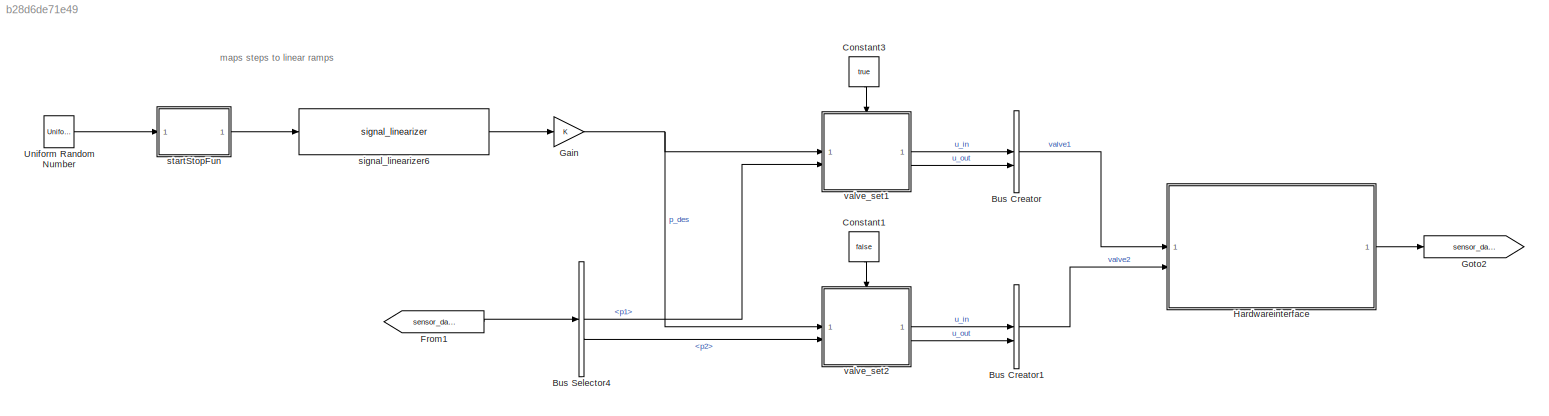
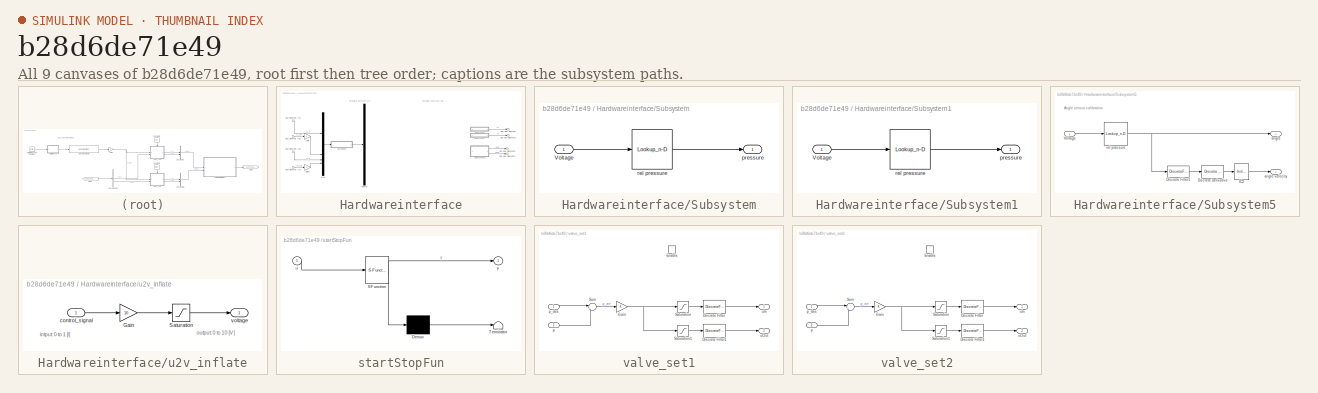
[diagram: thumbnail index - all 9 canvases of the model, root first then tree order]
MODEL slx_b28d6de71e49
KIND model
CONFIG AbsTol = auto
CONFIG EnableMultiTasking = off
CONFIG FixedStep = dev.dt
CONFIG MaxStep = auto
CONFIG MinStep = auto
CONFIG RelTol = 1e-3
CONFIG SampleTimeConstraint = Unconstrained
CONFIG SolverName = FixedStepDiscrete
CONFIG StartTime = 0.0
CONFIG StopTime = 300
BLOCK [BusCreator] Bus Creator
  DisplayOption = bar
  InheritFromInputs = on
  Inputs = 2
BLOCK [BusCreator] Bus Creator1
  DisplayOption = bar
  InheritFromInputs = on
  Inputs = 2
BLOCK [BusSelector] Bus Selector4
  OutputSignals = p1,p2
BLOCK [Constant] Constant1
  NameLocation = left
  Value = false
BLOCK [Constant] Constant3
  NameLocation = left
  Value = true
BLOCK [From] From1
  GotoTag = sensor_data
BLOCK [Gain] Gain
BLOCK [Goto] Goto2
  GotoTag = sensor_data
  NameLocation = top
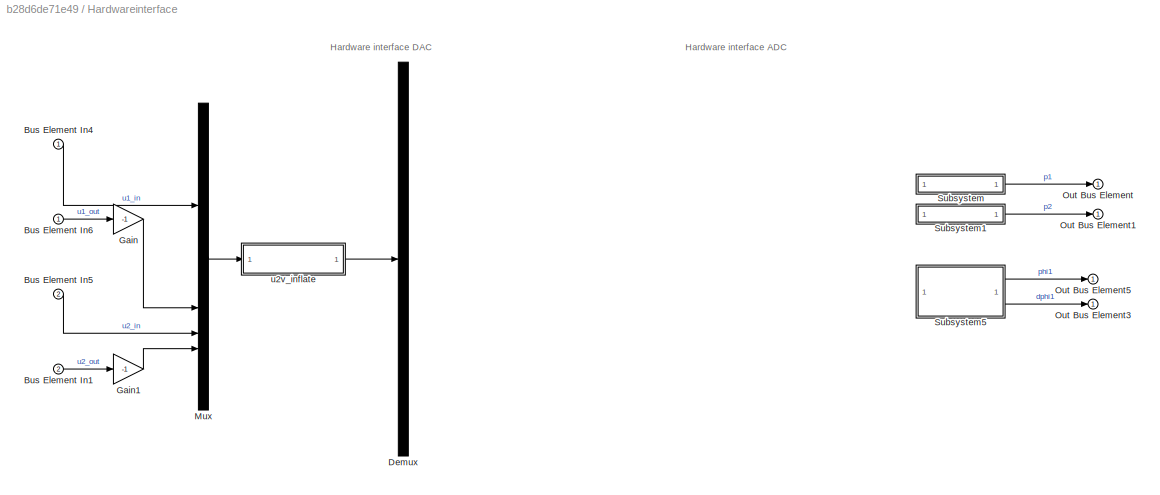
BLOCK [SubSystem] Hardwareinterface
BLOCK [Inport] Hardwareinterface/Bus Element In1
  Port = 2
BLOCK [Inport] Hardwareinterface/Bus Element In4
BLOCK [Inport] Hardwareinterface/Bus Element In5
  Port = 2
BLOCK [Inport] Hardwareinterface/Bus Element In6
BLOCK [Demux] Hardwareinterface/Demux
BLOCK [Gain] Hardwareinterface/Gain
  Gain = -1
BLOCK [Gain] Hardwareinterface/Gain1
  Gain = -1
BLOCK [Mux] Hardwareinterface/Mux
  DisplayOption = bar
BLOCK [Outport] Hardwareinterface/Out Bus Element
BLOCK [Outport] Hardwareinterface/Out Bus Element1
BLOCK [Outport] Hardwareinterface/Out Bus Element3
BLOCK [Outport] Hardwareinterface/Out Bus Element5
BLOCK [SubSystem] Hardwareinterface/Subsystem
BLOCK [Inport] Hardwareinterface/Subsystem/Voltage
BLOCK [Outport] Hardwareinterface/Subsystem/pressure
  VectorParamsAs1DForOutWhenUnconnected = off
BLOCK [Lookup_n-D] Hardwareinterface/Subsystem/rel pressure
  BreakpointsForDimension1 = [0 10]
  InputPortMap = u0
  InternalRulePriority = Speed
  NumberOfTableDimensions = 1
  RndMeth = Simplest
  Table = [0 10]
BLOCK [SubSystem] Hardwareinterface/Subsystem1
BLOCK [Inport] Hardwareinterface/Subsystem1/Voltage
BLOCK [Outport] Hardwareinterface/Subsystem1/pressure
  VectorParamsAs1DForOutWhenUnconnected = off
BLOCK [Lookup_n-D] Hardwareinterface/Subsystem1/rel pressure
  BreakpointsForDimension1 = [0 10]
  InputPortMap = u0
  InternalRulePriority = Speed
  NumberOfTableDimensions = 1
  RndMeth = Simplest
  Table = [0 10]
BLOCK [SubSystem] Hardwareinterface/Subsystem5
BLOCK [Reference] Hardwareinterface/Subsystem5/Discrete Derivative  REF=simulink/Discrete/Discrete Derivative
  SourceBlock = simulink/Discrete/Discrete Derivative
  SourceType = Discrete Derivative
BLOCK [DiscreteFilter] Hardwareinterface/Subsystem5/Discrete Filter1
  CloseFcn = dspblkCoreblockFVToolHelper(gcbh,'close');
  CopyFcn = dspblkCoreblockFVToolHelper(gcbh,'copy');
  DeleteFcn = dspblkCoreblockFVToolHelper(gcbh,'close');
  Denominator = disfilt.angle.Denominator{1}
  InputPortMap = u0
  LoadFcn = dspblkCoreblockFVToolHelper(gcbh,'load');
  ModelCloseFcn = dspblkCoreblockFVToolHelper(gcbh,'close');
  Numerator = disfilt.angle.Numerator{1}
  PostSaveFcn = dspblkCoreblockFVToolHelper(gcbh,'postsave');
  PreSaveFcn = dspblkCoreblockFVToolHelper(gcbh,'presave');
BLOCK [InitialCondition] Hardwareinterface/Subsystem5/IC2
BLOCK [Inport] Hardwareinterface/Subsystem5/Voltage
BLOCK [Outport] Hardwareinterface/Subsystem5/angle
  VectorParamsAs1DForOutWhenUnconnected = off
BLOCK [Outport] Hardwareinterface/Subsystem5/angle velocity
  Port = 2
  VectorParamsAs1DForOutWhenUnconnected = off
BLOCK [Lookup_n-D] Hardwareinterface/Subsystem5/rel pressure
  BreakpointsForDimension1 = [2.167 3.14]
  InputPortMap = u0
  InternalRulePriority = Speed
  NumberOfTableDimensions = 1
  RndMeth = Simplest
  Table = [0.7854 -0.7854]
BLOCK [SubSystem] Hardwareinterface/u2v_inflate
BLOCK [Gain] Hardwareinterface/u2v_inflate/Gain
  Gain = 10
BLOCK [Saturate] Hardwareinterface/u2v_inflate/Saturation
  LowerLimit = 0
  UpperLimit = 10
BLOCK [Inport] Hardwareinterface/u2v_inflate/control_signal
BLOCK [Outport] Hardwareinterface/u2v_inflate/voltage
  VectorParamsAs1DForOutWhenUnconnected = off
BLOCK [UniformRandomNumber] Uniform Random Number
  Maximum = 6.5
  Minimum = -0.5
  SampleTime = dt
BLOCK [Reference] signal_linearizer6  REF=subsignallib/signal_linearizer
  SourceBlock = subsignallib/signal_linearizer
  SourceProductName = Signals
BLOCK [SubSystem] startStopFun
  ErrorFcn = Stateflow.Translate.translate
  LibrarySourceBlock = simulink/User-Defined\nFunctions/MATLAB Function
  PermitHierarchicalResolution = ExplicitOnly
  SFBlockType = MATLAB Function
  TreatAsAtomicUnit = on
BLOCK [Demux] startStopFun/ Demux 
  Outputs = 1
BLOCK [S-Function] startStopFun/ SFunction 
  EnableBusSupport = on
  FunctionName = sf_sfun
  PortCounts = [1 2]
  SFcnIsStateOwnerBlock = off
  SFunctionDeploymentMode = off
  Tag = Stateflow S-Function 8
BLOCK [Terminator] startStopFun/ Terminator 
BLOCK [Inport] startStopFun/u
BLOCK [Outport] startStopFun/y
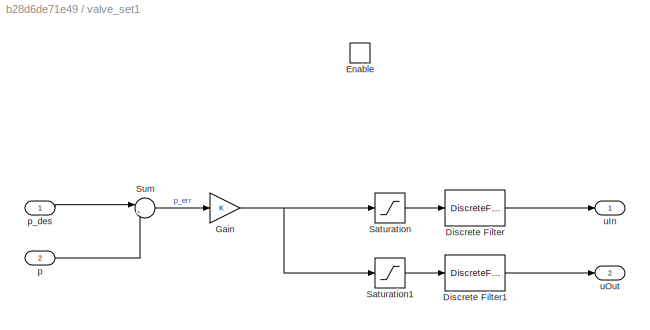
BLOCK [SubSystem] valve_set1
BLOCK [DiscreteFilter] valve_set1/Discrete Filter
  CloseFcn = dspblkCoreblockFVToolHelper(gcbh,'close');
  CopyFcn = dspblkCoreblockFVToolHelper(gcbh,'copy');
  DeleteFcn = dspblkCoreblockFVToolHelper(gcbh,'close');
  Denominator = disfilt.ulimit.Denominator{:}
  InitialStates = 0.2
  InputPortMap = u0
  LoadFcn = dspblkCoreblockFVToolHelper(gcbh,'load');
  ModelCloseFcn = dspblkCoreblockFVToolHelper(gcbh,'close');
  Numerator = disfilt.ulimit.Numerator{:}
  PostSaveFcn = dspblkCoreblockFVToolHelper(gcbh,'postsave');
  PreSaveFcn = dspblkCoreblockFVToolHelper(gcbh,'presave');
BLOCK [DiscreteFilter] valve_set1/Discrete Filter1
  CloseFcn = dspblkCoreblockFVToolHelper(gcbh,'close');
  CopyFcn = dspblkCoreblockFVToolHelper(gcbh,'copy');
  DeleteFcn = dspblkCoreblockFVToolHelper(gcbh,'close');
  Denominator = disfilt.ulimit.Denominator{:}
  InitialStates = -0.2
  InputPortMap = u0
  LoadFcn = dspblkCoreblockFVToolHelper(gcbh,'load');
  ModelCloseFcn = dspblkCoreblockFVToolHelper(gcbh,'close');
  Numerator = disfilt.ulimit.Numerator{:}
  PostSaveFcn = dspblkCoreblockFVToolHelper(gcbh,'postsave');
  PreSaveFcn = dspblkCoreblockFVToolHelper(gcbh,'presave');
BLOCK [EnablePort] valve_set1/Enable
BLOCK [Gain] valve_set1/Gain
BLOCK [Saturate] valve_set1/Saturation
  LowerLimit = 0
  UpperLimit = 1
BLOCK [Saturate] valve_set1/Saturation1
  LowerLimit = -1
  UpperLimit = 0
BLOCK [Sum] valve_set1/Sum
  Inputs = |+-
BLOCK [Inport] valve_set1/p
  Port = 2
BLOCK [Inport] valve_set1/p_des
BLOCK [Outport] valve_set1/uIn
  InitialOutput = 0
  OutputWhenDisabled = reset
BLOCK [Outport] valve_set1/uOut
  InitialOutput = 0
  OutputWhenDisabled = reset
  Port = 2
BLOCK [SubSystem] valve_set2
BLOCK [DiscreteFilter] valve_set2/Discrete Filter
  CloseFcn = dspblkCoreblockFVToolHelper(gcbh,'close');
  CopyFcn = dspblkCoreblockFVToolHelper(gcbh,'copy');
  DeleteFcn = dspblkCoreblockFVToolHelper(gcbh,'close');
  Denominator = disfilt.ulimit.Denominator{:}
  InitialStates = 0.2
  InputPortMap = u0
  LoadFcn = dspblkCoreblockFVToolHelper(gcbh,'load');
  ModelCloseFcn = dspblkCoreblockFVToolHelper(gcbh,'close');
  Numerator = disfilt.ulimit.Numerator{:}
  PostSaveFcn = dspblkCoreblockFVToolHelper(gcbh,'postsave');
  PreSaveFcn = dspblkCoreblockFVToolHelper(gcbh,'presave');
BLOCK [DiscreteFilter] valve_set2/Discrete Filter1
  CloseFcn = dspblkCoreblockFVToolHelper(gcbh,'close');
  CopyFcn = dspblkCoreblockFVToolHelper(gcbh,'copy');
  DeleteFcn = dspblkCoreblockFVToolHelper(gcbh,'close');
  Denominator = disfilt.ulimit.Denominator{:}
  InitialStates = -0.2
  InputPortMap = u0
  LoadFcn = dspblkCoreblockFVToolHelper(gcbh,'load');
  ModelCloseFcn = dspblkCoreblockFVToolHelper(gcbh,'close');
  Numerator = disfilt.ulimit.Numerator{:}
  PostSaveFcn = dspblkCoreblockFVToolHelper(gcbh,'postsave');
  PreSaveFcn = dspblkCoreblockFVToolHelper(gcbh,'presave');
BLOCK [EnablePort] valve_set2/Enable
BLOCK [Gain] valve_set2/Gain
BLOCK [Saturate] valve_set2/Saturation
  LowerLimit = 0
  UpperLimit = 1
BLOCK [Saturate] valve_set2/Saturation1
  LowerLimit = -1
  UpperLimit = 0
BLOCK [Sum] valve_set2/Sum
  Inputs = |+-
BLOCK [Inport] valve_set2/p
  Port = 2
BLOCK [Inport] valve_set2/p_des
BLOCK [Outport] valve_set2/uIn
  InitialOutput = 0
  OutputWhenDisabled = reset
BLOCK [Outport] valve_set2/uOut
  InitialOutput = 0
  OutputWhenDisabled = reset
  Port = 2
ANNOTATION (root): maps steps to linear ramps
ANNOTATION Hardwareinterface: Hardware interface ADC
ANNOTATION Hardwareinterface: Hardware interface DAC
ANNOTATION Hardwareinterface/Subsystem5: Angle sensor calibration
ANNOTATION Hardwareinterface/u2v_inflate: intput: 0 to 1 [/]
ANNOTATION Hardwareinterface/u2v_inflate: output: 0 to 10 [V]
LINE Bus Creator1:1 -> Hardwareinterface:2
LINE Bus Creator:1 -> Hardwareinterface:1
LINE Bus Selector4:1 -> valve_set1:2
LINE Bus Selector4:2 -> valve_set2:2
LINE Constant1:1 -> valve_set2:enable
LINE Constant3:1 -> valve_set1:enable
LINE From1:1 -> Bus Selector4:1
NET Gain:1 -> valve_set1:1, valve_set2:1
LINE Hardwareinterface/Bus Element In1:1 -> Hardwareinterface/Gain1:1
LINE Hardwareinterface/Bus Element In4:1 -> Hardwareinterface/Mux:1
LINE Hardwareinterface/Bus Element In5:1 -> Hardwareinterface/Mux:3
LINE Hardwareinterface/Bus Element In6:1 -> Hardwareinterface/Gain:1
LINE Hardwareinterface/Gain1:1 -> Hardwareinterface/Mux:4
LINE Hardwareinterface/Gain:1 -> Hardwareinterface/Mux:2
LINE Hardwareinterface/Mux:1 -> Hardwareinterface/u2v_inflate:1
LINE Hardwareinterface/Subsystem/Voltage:1 -> Hardwareinterface/Subsystem/rel pressure:1
LINE Hardwareinterface/Subsystem/rel pressure:1 -> Hardwareinterface/Subsystem/pressure:1
LINE Hardwareinterface/Subsystem1/Voltage:1 -> Hardwareinterface/Subsystem1/rel pressure:1
LINE Hardwareinterface/Subsystem1/rel pressure:1 -> Hardwareinterface/Subsystem1/pressure:1
LINE Hardwareinterface/Subsystem1:1 -> Hardwareinterface/Out Bus Element1:1
LINE Hardwareinterface/Subsystem5/Discrete Derivative:1 -> Hardwareinterface/Subsystem5/IC2:1
LINE Hardwareinterface/Subsystem5/Discrete Filter1:1 -> Hardwareinterface/Subsystem5/Discrete Derivative:1
LINE Hardwareinterface/Subsystem5/IC2:1 -> Hardwareinterface/Subsystem5/angle velocity:1
LINE Hardwareinterface/Subsystem5/Voltage:1 -> Hardwareinterface/Subsystem5/rel pressure:1
NET Hardwareinterface/Subsystem5/rel pressure:1 -> Hardwareinterface/Subsystem5/Discrete Filter1:1, Hardwareinterface/Subsystem5/angle:1
LINE Hardwareinterface/Subsystem5:1 -> Hardwareinterface/Out Bus Element5:1
LINE Hardwareinterface/Subsystem5:2 -> Hardwareinterface/Out Bus Element3:1
LINE Hardwareinterface/Subsystem:1 -> Hardwareinterface/Out Bus Element:1
LINE Hardwareinterface/u2v_inflate/Gain:1 -> Hardwareinterface/u2v_inflate/Saturation:1
LINE Hardwareinterface/u2v_inflate/Saturation:1 -> Hardwareinterface/u2v_inflate/voltage:1
LINE Hardwareinterface/u2v_inflate/control_signal:1 -> Hardwareinterface/u2v_inflate/Gain:1
LINE Hardwareinterface/u2v_inflate:1 -> Hardwareinterface/Demux:1
LINE Hardwareinterface:1 -> Goto2:1
LINE Uniform Random Number:1 -> startStopFun:1
LINE signal_linearizer6:1 -> Gain:1
LINE startStopFun:1 -> signal_linearizer6:1
LINE valve_set1/Discrete Filter1:1 -> valve_set1/uOut:1
LINE valve_set1/Discrete Filter:1 -> valve_set1/uIn:1
NET valve_set1/Gain:1 -> valve_set1/Saturation1:1, valve_set1/Saturation:1
LINE valve_set1/Saturation1:1 -> valve_set1/Discrete Filter1:1
LINE valve_set1/Saturation:1 -> valve_set1/Discrete Filter:1
LINE valve_set1/Sum:1 -> valve_set1/Gain:1
LINE valve_set1/p:1 -> valve_set1/Sum:2
LINE valve_set1/p_des:1 -> valve_set1/Sum:1
LINE valve_set1:1 -> Bus Creator:1
LINE valve_set1:2 -> Bus Creator:2
LINE valve_set2/Discrete Filter1:1 -> valve_set2/uOut:1
LINE valve_set2/Discrete Filter:1 -> valve_set2/uIn:1
NET valve_set2/Gain:1 -> valve_set2/Saturation1:1, valve_set2/Saturation:1
LINE valve_set2/Saturation1:1 -> valve_set2/Discrete Filter1:1
LINE valve_set2/Saturation:1 -> valve_set2/Discrete Filter:1
LINE valve_set2/Sum:1 -> valve_set2/Gain:1
LINE valve_set2/p:1 -> valve_set2/Sum:2
LINE valve_set2/p_des:1 -> valve_set2/Sum:1
LINE valve_set2:1 -> Bus Creator1:1
LINE valve_set2:2 -> Bus Creator1:2
note: NET lines group one-source signal fan-out (src -> all destinations, sorted); 1:1 wires keep LINE
CHART startStopFun states=1 transitions=1
  STATE_LABEL 'eML_blk_kernel()'
  STATE_LABEL 'SCRIPT:\nfunction y = fcn(u)\ny = 0;\npersistent t\nif isempty(t)\n    t = 0; % wait n samples\n    return\nend\nt = t+1;\ndt = 0.005;\ntStart = 2/dt;\ntEnd = 290/dt;\n\nif t > tStart && t < tEnd\n    y = u;\nelse\n    y = 0;\nend'
CHART  states=0 transitions=0
